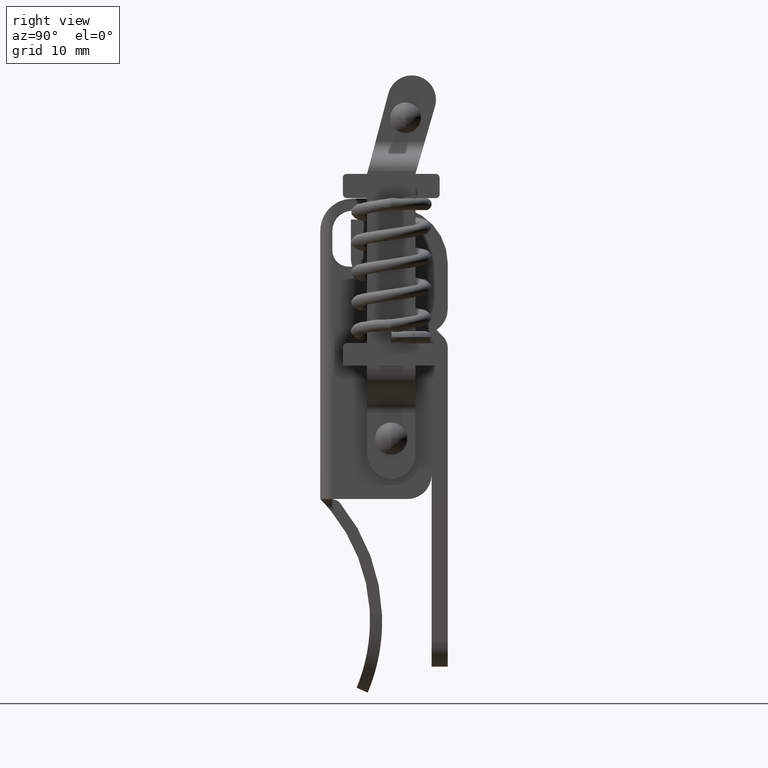
[diagram: clean part render]
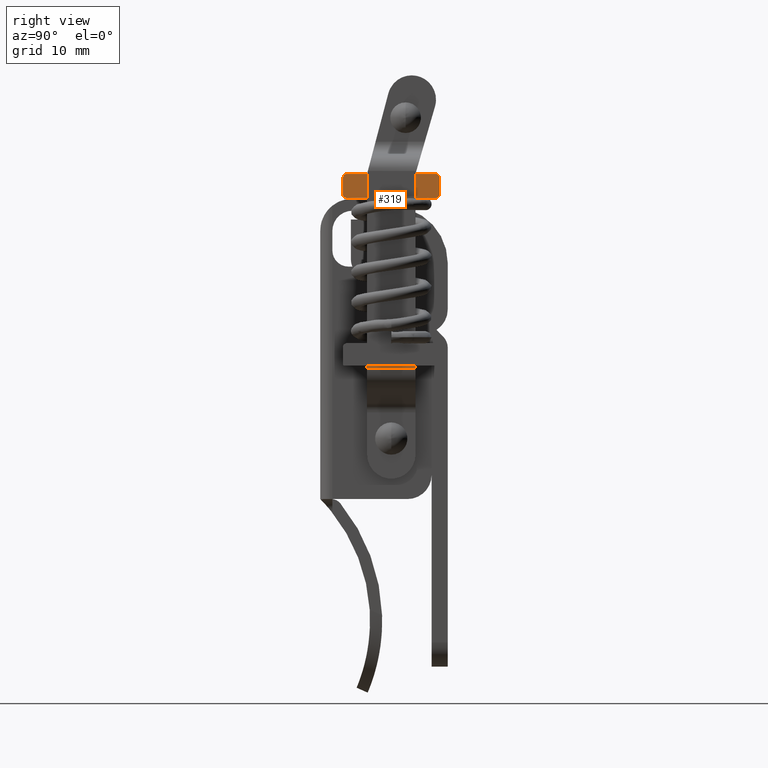
[diagram: same view with one face highlighted and labeled with its STEP entity id]
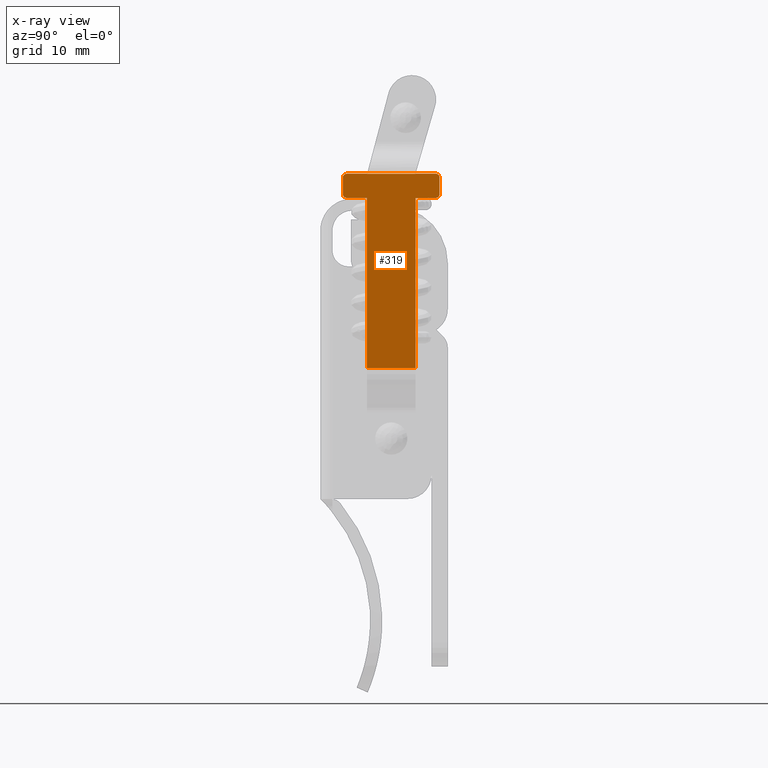
[diagram: x-ray of the same camera — body ghosted, the highlighted face saturated]
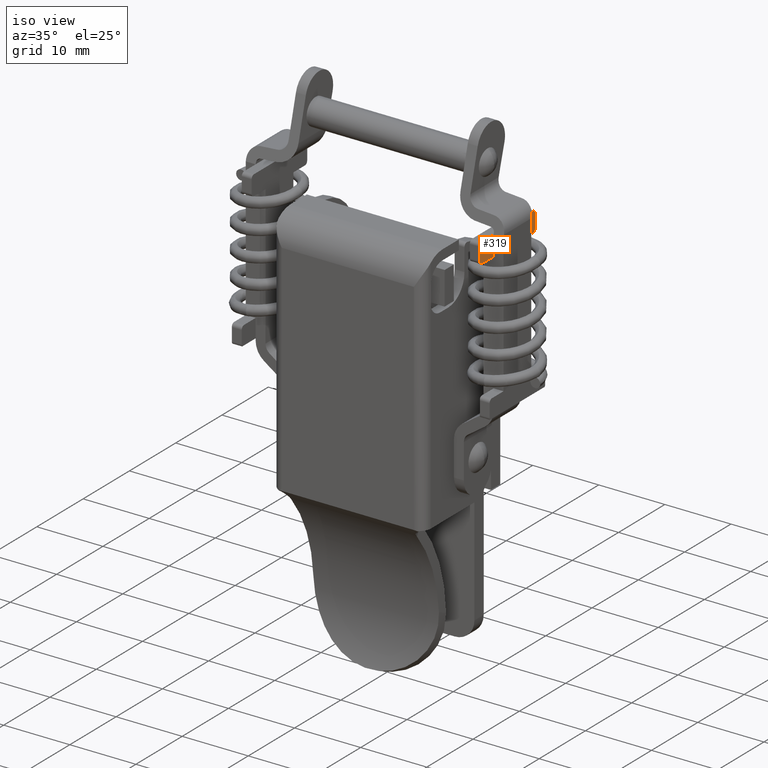
[diagram: same view with one face highlighted and labeled with its STEP entity id]
A machine part, right view. The second image highlights one B-rep face of the part: STEP entity #319.
The next image is the same camera in x-ray: the body ghosted, the highlighted face saturated — about 0% of this face is hidden behind the body in this view.
A second angle (iso view) of the same face is appended — the face is thin or edge-on in the first view.
In plain terms, the highlighted planar face has unit normal (-1, 0, 0).
Its self-contained STEP definition (entity closure, byte-faithful):
#319=ADVANCED_FACE('',(#1314),#1313,.F.);
#1313=PLANE('',#6521);
#1314=FACE_OUTER_BOUND('',#6522,.T.);
#6518=CARTESIAN_POINT('',(1.85000000000E+01,7.20000377369E+00,3.52077516493E+01));
#6519=DIRECTION('',(-1.00000000000E+00,0.00000000000E+00,0.00000000000E+00));
#6520=DIRECTION('',(0.00000000000E+00,0.00000000000E+00,-1.00000000000E+00));
#6521=AXIS2_PLACEMENT_3D('',#6518,#6519,#6520);
#6522=EDGE_LOOP('',(#7590,#7591,#7592,#7593,#7594,#7595,#7596,#7597,#7598,#7599,#7600,#7601,#7602,#7603));
#7590=ORIENTED_EDGE('',*,*,#8492,.T.);
#7591=ORIENTED_EDGE('',*,*,#8491,.T.);
#7592=ORIENTED_EDGE('',*,*,#8490,.T.);
#7593=ORIENTED_EDGE('',*,*,#8488,.T.);
#7594=ORIENTED_EDGE('',*,*,#8486,.T.);
#7595=ORIENTED_EDGE('',*,*,#8484,.T.);
#7596=ORIENTED_EDGE('',*,*,#8497,.F.);
#7597=ORIENTED_EDGE('',*,*,#8498,.F.);
#7598=ORIENTED_EDGE('',*,*,#8499,.F.);
#7599=ORIENTED_EDGE('',*,*,#8481,.T.);
#7600=ORIENTED_EDGE('',*,*,#8479,.T.);
#7601=ORIENTED_EDGE('',*,*,#8477,.T.);
#7602=ORIENTED_EDGE('',*,*,#8464,.T.);
#7603=ORIENTED_EDGE('',*,*,#8493,.T.);
#8464=EDGE_CURVE('',#10293,#10308,#10315,.T.);
#8477=EDGE_CURVE('',#10397,#10293,#10404,.T.);
#8479=EDGE_CURVE('',#10410,#10397,#10417,.T.);
#8481=EDGE_CURVE('',#10423,#10410,#10430,.T.);
#8484=EDGE_CURVE('',#10436,#10443,#10450,.T.);
#8486=EDGE_CURVE('',#10456,#10436,#10463,.T.);
#8488=EDGE_CURVE('',#10469,#10456,#10476,.T.);
#8490=EDGE_CURVE('',#10482,#10469,#10489,.T.);
#8491=EDGE_CURVE('',#10495,#10482,#10496,.T.);
#8492=EDGE_CURVE('',#10502,#10495,#10503,.T.);
#8493=EDGE_CURVE('',#10308,#10502,#10509,.T.);
#8497=EDGE_CURVE('',#10535,#10443,#10536,.T.);
#8498=EDGE_CURVE('',#10542,#10535,#10543,.T.);
#8499=EDGE_CURVE('',#10423,#10542,#10549,.T.);
#10293=VERTEX_POINT('',#13802);
#10308=VERTEX_POINT('',#13812);
#10315=CIRCLE('',#13819,5.00000000000E-01);
#10397=VERTEX_POINT('',#13866);
#10404=LINE('',#13870,#13871);
#10410=VERTEX_POINT('',#13873);
#10417=CIRCLE('',#13880,5.00000000000E-01);
#10423=VERTEX_POINT('',#13881);
#10430=(BOUNDED_CURVE() B_SPLINE_CURVE(1,(#13884,#13885),.UNSPECIFIED.,.F.,.F.) B_SPLINE_CURVE_WITH_KNOTS((2,2),(0.00000000000E+00,1.00000000000E+00),.UNSPECIFIED.) CURVE() GEOMETRIC_REPRESENTATION_ITEM() RATIONAL_B_SPLINE_CURVE((1.00000000000E+00,1.00000000000E+00)) REPRESENTATION_ITEM('') );
#10436=VERTEX_POINT('',#13886);
#10443=VERTEX_POINT('',#13890);
#10450=(BOUNDED_CURVE() B_SPLINE_CURVE(1,(#13893,#13894),.UNSPECIFIED.,.F.,.F.) B_SPLINE_CURVE_WITH_KNOTS((2,2),(0.00000000000E+00,1.00000000000E+00),.UNSPECIFIED.) CURVE() GEOMETRIC_REPRESENTATION_ITEM() RATIONAL_B_SPLINE_CURVE((1.00000000000E+00,1.00000000000E+00)) REPRESENTATION_ITEM('') );
#10456=VERTEX_POINT('',#13895);
#10463=CIRCLE('',#13902,5.00000000000E-01);
#10469=VERTEX_POINT('',#13903);
#10476=LINE('',#13907,#13908);
#10482=VERTEX_POINT('',#13910);
#10489=CIRCLE('',#13917,5.00000000000E-01);
#10495=VERTEX_POINT('',#13918);
#10496=LINE('',#13919,#13920);
#10502=VERTEX_POINT('',#13922);
#10503=LINE('',#13923,#13924);
#10509=LINE('',#13926,#13927);
#10535=VERTEX_POINT('',#13941);
#10536=(BOUNDED_CURVE() B_SPLINE_CURVE(1,(#13942,#13943),.UNSPECIFIED.,.F.,.F.) B_SPLINE_CURVE_WITH_KNOTS((2,2),(0.00000000000E+00,1.00000000000E+00),.UNSPECIFIED.) CURVE() GEOMETRIC_REPRESENTATION_ITEM() RATIONAL_B_SPLINE_CURVE((1.00000000000E+00,1.00000000000E+00)) REPRESENTATION_ITEM('') );
#10542=VERTEX_POINT('',#13944);
#10543=LINE('',#13945,#13946);
#10549=(BOUNDED_CURVE() B_SPLINE_CURVE(1,(#13948,#13949),.UNSPECIFIED.,.F.,.F.) B_SPLINE_CURVE_WITH_KNOTS((2,2),(0.00000000000E+00,1.00000000000E+00),.UNSPECIFIED.) CURVE() GEOMETRIC_REPRESENTATION_ITEM() RATIONAL_B_SPLINE_CURVE((1.00000000000E+00,1.00000000000E+00)) REPRESENTATION_ITEM('') );
#13802=CARTESIAN_POINT('',(1.85000000000E+01,6.00000365297E+00,3.22970159742E+01));
#13812=CARTESIAN_POINT('',(1.85000000000E+01,5.50000365297E+00,3.27970159742E+01));
#13816=CARTESIAN_POINT('',(1.85000000000E+01,5.50000365297E+00,3.22970159742E+01));
#13817=DIRECTION('',(1.00000000000E+00,0.00000000000E+00,0.00000000000E+00));
#13818=DIRECTION('',(-0.00000000000E+00,-0.00000000000E+00,1.00000000000E+00));
#13819=AXIS2_PLACEMENT_3D('',#13816,#13817,#13818);
#13866=CARTESIAN_POINT('',(1.85000000000E+01,6.00000375818E+00,3.02970148810E+01));
#13870=CARTESIAN_POINT('',(1.85000000000E+01,6.00000375818E+00,3.02970148810E+01));
#13871=VECTOR('',#13872,2.00000109321E+00);
#13872=DIRECTION('',(0.00000000000E+00,-5.26052749143E-08,1.00000000000E+00));
#13873=CARTESIAN_POINT('',(1.85000000000E+01,5.50000375603E+00,2.97970148810E+01));
#13877=CARTESIAN_POINT('',(1.85000000000E+01,5.50000375818E+00,3.02970148810E+01));
#13878=DIRECTION('',(1.00000000000E+00,0.00000000000E+00,0.00000000000E+00));
#13879=DIRECTION('',(-0.00000000000E+00,-0.00000000000E+00,1.00000000000E+00));
#13880=AXIS2_PLACEMENT_3D('',#13877,#13878,#13879);
#13881=CARTESIAN_POINT('',(1.85000000000E+01,3.00000417742E+00,2.97970148810E+01));
#13884=CARTESIAN_POINT('',(1.85000000000E+01,3.00000417742E+00,2.97970148810E+01));
#13885=CARTESIAN_POINT('',(1.85000000000E+01,5.50000375603E+00,2.97970148810E+01));
#13886=CARTESIAN_POINT('',(1.85000000000E+01,-5.49999638497E+00,2.97970149025E+01));
#13890=CARTESIAN_POINT('',(1.85000000000E+01,-2.99999632829E+00,2.97970148810E+01));
#13893=CARTESIAN_POINT('',(1.85000000000E+01,-5.49999638497E+00,2.97970149025E+01));
#13894=CARTESIAN_POINT('',(1.85000000000E+01,-2.99999632829E+00,2.97970148810E+01));
#13895=CARTESIAN_POINT('',(1.85000000000E+01,-5.99999638497E+00,3.02970149145E+01));
#13899=CARTESIAN_POINT('',(1.85000000000E+01,-5.49999638497E+00,3.02970149025E+01));
#13900=DIRECTION('',(1.00000000000E+00,0.00000000000E+00,0.00000000000E+00));
#13901=DIRECTION('',(-0.00000000000E+00,-0.00000000000E+00,1.00000000000E+00));
#13902=AXIS2_PLACEMENT_3D('',#13899,#13900,#13901);
#13903=CARTESIAN_POINT('',(1.85000000000E+01,-5.99999638497E+00,3.22970143666E+01));
#13907=CARTESIAN_POINT('',(1.85000000000E+01,-5.99999638497E+00,3.22970143666E+01));
#13908=VECTOR('',#13909,1.99999945212E+00);
#13909=DIRECTION('',(0.00000000000E+00,0.00000000000E+00,-1.00000000000E+00));
#13910=CARTESIAN_POINT('',(1.85000000000E+01,-5.49999655225E+00,3.27970143666E+01));
#13914=CARTESIAN_POINT('',(1.85000000000E+01,-5.49999638497E+00,3.22970143666E+01));
#13915=DIRECTION('',(1.00000000000E+00,0.00000000000E+00,0.00000000000E+00));
#13916=DIRECTION('',(-0.00000000000E+00,-0.00000000000E+00,1.00000000000E+00));
#13917=AXIS2_PLACEMENT_3D('',#13914,#13915,#13916);
#13918=CARTESIAN_POINT('',(1.85000000000E+01,-2.99999632829E+00,3.27970147320E+01));
#13919=CARTESIAN_POINT('',(1.85000000000E+01,-2.99999632829E+00,3.27970147320E+01));
#13920=VECTOR('',#13921,2.50000022396E+00);
#13921=DIRECTION('',(0.00000000000E+00,-1.00000000000E+00,-1.46141981059E-07));
#13922=CARTESIAN_POINT('',(1.85000000000E+01,3.00000417742E+00,3.27970147320E+01));
#13923=CARTESIAN_POINT('',(1.85000000000E+01,3.00000417742E+00,3.27970147320E+01));
#13924=VECTOR('',#13925,6.00000050571E+00);
#13925=DIRECTION('',(0.00000000000E+00,-1.00000000000E+00,0.00000000000E+00));
#13926=CARTESIAN_POINT('',(1.85000000000E+01,5.50000365297E+00,3.27970159742E+01));
#13927=VECTOR('',#13928,2.49999947555E+00);
#13928=DIRECTION('',(0.00000000000E+00,-1.00000000000E+00,-1.46141982176E-07));
#13941=CARTESIAN_POINT('',(1.85000000000E+01,-2.99999881587E+00,8.68965922286E+00));
#13942=CARTESIAN_POINT('',(1.85000000000E+01,-2.99999881587E+00,8.68965922286E+00));
#13943=CARTESIAN_POINT('',(1.85000000000E+01,-2.99999632829E+00,2.97970148810E+01));
#13944=CARTESIAN_POINT('',(1.85000000000E+01,3.00000166942E+00,8.68965922286E+00));
#13945=CARTESIAN_POINT('',(1.85000000000E+01,3.00000166942E+00,8.68965922286E+00));
#13946=VECTOR('',#13947,6.00000048529E+00);
#13947=DIRECTION('',(0.00000000000E+00,-1.00000000000E+00,0.00000000000E+00));
#13948=CARTESIAN_POINT('',(1.85000000000E+01,3.00000417742E+00,2.97970148810E+01));
#13949=CARTESIAN_POINT('',(1.85000000000E+01,3.00000166942E+00,8.68965922286E+00));